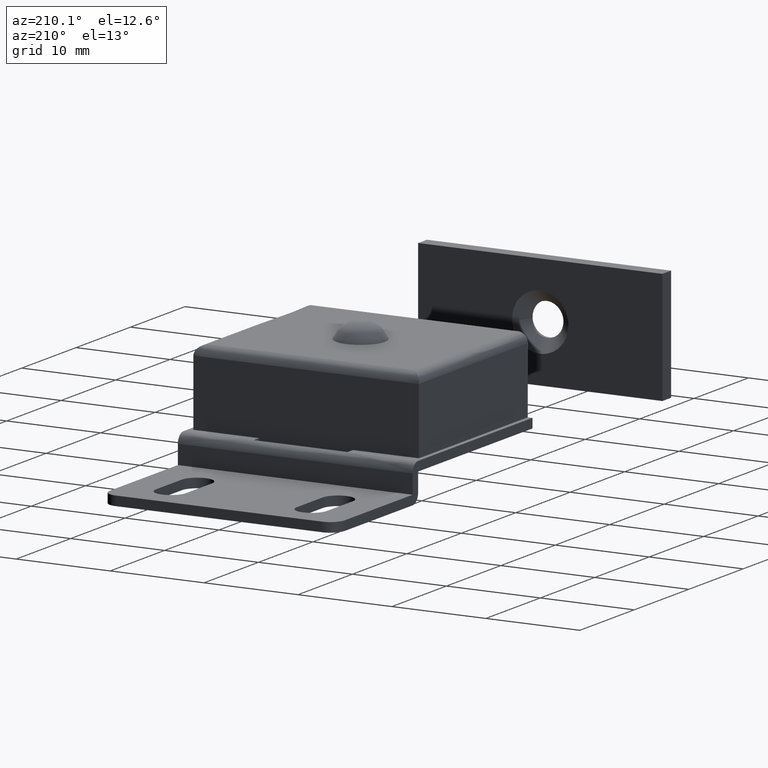
[diagram: clean part render]
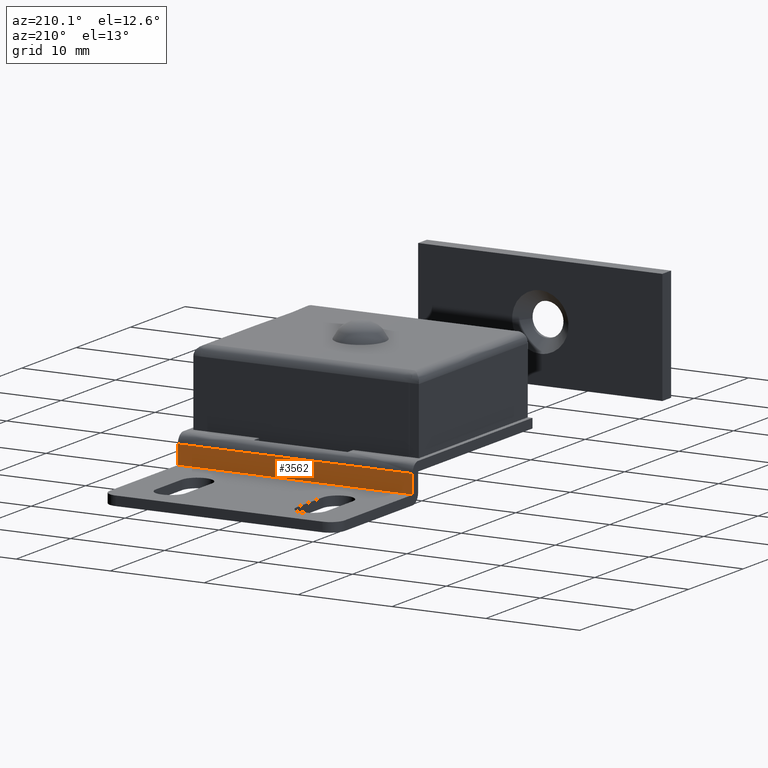
[diagram: same view with one face highlighted and labeled with its STEP entity id]
A machine part, auxiliary view. The second image highlights one B-rep face of the part: STEP entity #3562.
In plain terms, the highlighted face is a freeform B-spline surface patch.
Its self-contained STEP definition (entity closure, byte-faithful):
#3527=CARTESIAN_POINT('',(-13.748752051445150,-14.0,3.099899996123617));
#3528=CARTESIAN_POINT('',(-13.748752051445150,-14.0,0.900099950232118));
#3529=CARTESIAN_POINT('',(13.748750721997450,-14.0,3.099899996123617));
#3530=CARTESIAN_POINT('',(13.748750721997450,-14.0,0.900099950232118));
#3531=B_SPLINE_SURFACE_WITH_KNOTS('',1,1,((#3527,#3529),(#3528,#3530)),.UNSPECIFIED.,.F.,.F.,.U.,(2,2),(2,2),(0.0,2.199800045891499),(0.0,27.497502773442601),.UNSPECIFIED.);
#3532=CARTESIAN_POINT('',(-12.500002000000000,-14.0,0.999999999999915));
#3533=VERTEX_POINT('',#3532);
#3534=CARTESIAN_POINT('',(-12.500002000000000,-14.0,3.0));
#3535=VERTEX_POINT('',#3534);
#3536=CARTESIAN_POINT('',(-12.500002000000000,-14.0,0.999999999999915));
#3537=CARTESIAN_POINT('',(-12.500002000000000,-14.0,3.0));
#3538=QUASI_UNIFORM_CURVE('',1,(#3536,#3537),.UNSPECIFIED.,.F.,.U.);
#3539=EDGE_CURVE('',#3533,#3535,#3538,.T.);
#3540=ORIENTED_EDGE('',*,*,#3539,.T.);
#3541=CARTESIAN_POINT('',(12.500000000000000,-14.0,3.0));
#3542=VERTEX_POINT('',#3541);
#3543=CARTESIAN_POINT('',(12.500000000000000,-14.0,3.0));
#3544=CARTESIAN_POINT('',(-12.500002000000000,-14.0,3.0));
#3545=QUASI_UNIFORM_CURVE('',1,(#3543,#3544),.UNSPECIFIED.,.F.,.U.);
#3546=EDGE_CURVE('',#3542,#3535,#3545,.T.);
#3547=ORIENTED_EDGE('',*,*,#3546,.F.);
#3548=CARTESIAN_POINT('',(12.500000000000000,-14.0,0.999999999999915));
#3549=VERTEX_POINT('',#3548);
#3550=CARTESIAN_POINT('',(12.500000000000000,-14.0,0.999999999999915));
#3551=CARTESIAN_POINT('',(12.500000000000000,-14.0,3.0));
#3552=QUASI_UNIFORM_CURVE('',1,(#3550,#3551),.UNSPECIFIED.,.F.,.U.);
#3553=EDGE_CURVE('',#3549,#3542,#3552,.T.);
#3554=ORIENTED_EDGE('',*,*,#3553,.F.);
#3555=CARTESIAN_POINT('',(12.500000000000000,-14.0,0.999999999999915));
#3556=CARTESIAN_POINT('',(-12.500002000000000,-14.0,0.999999999999915));
#3557=QUASI_UNIFORM_CURVE('',1,(#3555,#3556),.UNSPECIFIED.,.F.,.U.);
#3558=EDGE_CURVE('',#3549,#3533,#3557,.T.);
#3559=ORIENTED_EDGE('',*,*,#3558,.T.);
#3560=EDGE_LOOP('',(#3540,#3547,#3554,#3559));
#3561=FACE_OUTER_BOUND('',#3560,.T.);
#3562=ADVANCED_FACE('',(#3561),#3531,.F.);